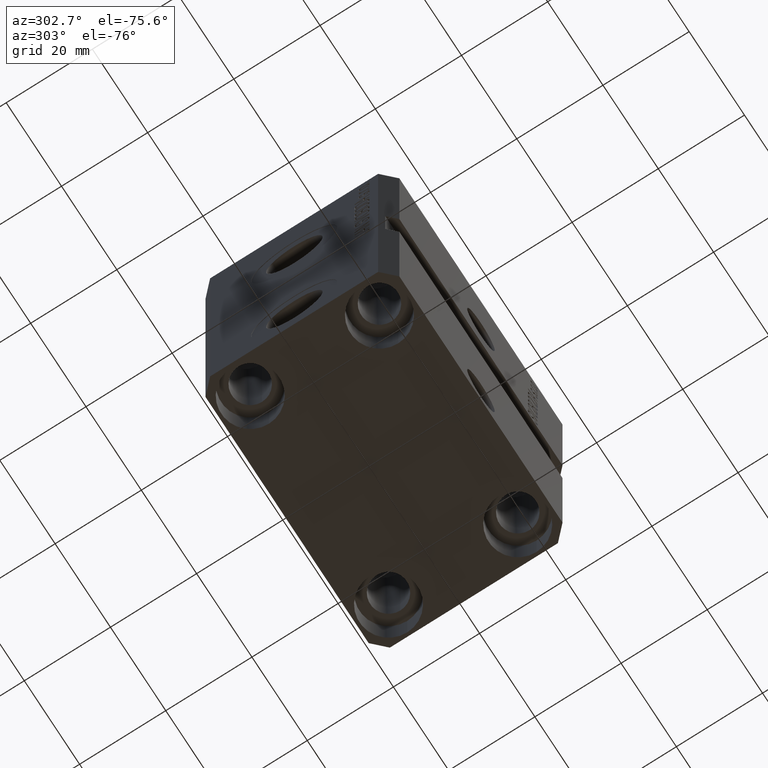
[diagram: clean part render]
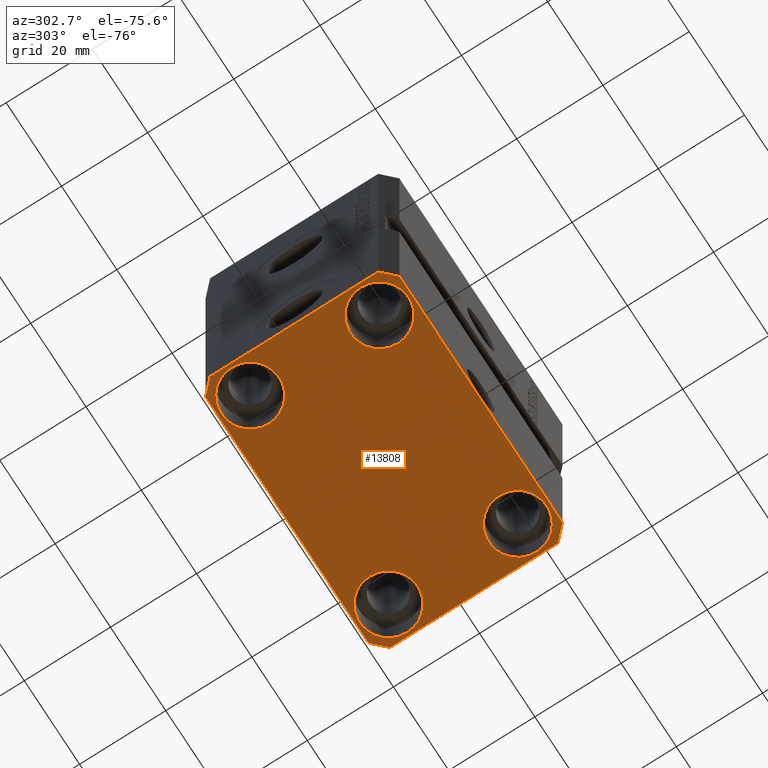
[diagram: same view with one face highlighted and labeled with its STEP entity id]
A machine part, auxiliary view. The second image highlights one B-rep face of the part: STEP entity #13808.
In plain terms, the highlighted planar face has unit normal (0, 0, 1).
Its self-contained STEP definition (entity closure, byte-faithful):
#385 = CARTESIAN_POINT ( 'NONE',  ( 24.99999999999999645, 15.00000000000000888, -77.00000000000000000 ) ) ;
#573 = AXIS2_PLACEMENT_3D ( 'NONE', #27769, #10561, #41965 ) ;
#877 = EDGE_CURVE ( 'NONE', #24814, #42746, #40366, .T. ) ;
#931 = EDGE_CURVE ( 'NONE', #3544, #34611, #20153, .T. ) ;
#1219 = AXIS2_PLACEMENT_3D ( 'NONE', #12422, #26602, #40784 ) ;
#1725 = DIRECTION ( 'NONE',  ( 0.7071067811865474617, -0.7071067811865474617, 0.000000000000000000 ) ) ;
#1830 = FACE_BOUND ( 'NONE', #39413, .T. ) ;
#2532 = VERTEX_POINT ( 'NONE', #19359 ) ;
#2724 = CARTESIAN_POINT ( 'NONE',  ( -32.49999999999650413, 19.49999999999949907, -77.00000000000000000 ) ) ;
#2886 = CARTESIAN_POINT ( 'NONE',  ( 32.49999999999651124, -19.49999999999949196, -77.00000000000000000 ) ) ;
#3140 = DIRECTION ( 'NONE',  ( 1.000000000000000000, 0.000000000000000000, 0.000000000000000000 ) ) ;
#3371 = PLANE ( 'NONE',  #573 ) ;
#3544 = VERTEX_POINT ( 'NONE', #45976 ) ;
#3685 = CARTESIAN_POINT ( 'NONE',  ( -29.49999999999650413, 22.49999999999949907, -77.00000000000000000 ) ) ;
#3698 = CARTESIAN_POINT ( 'NONE',  ( 18.25000000002253842, -15.00000000000000000, -77.00000000000000000 ) ) ;
#3925 = LINE ( 'NONE', #42525, #20994 ) ;
#4488 = VERTEX_POINT ( 'NONE', #6701 ) ;
#4956 = VERTEX_POINT ( 'NONE', #4984 ) ;
#4984 = CARTESIAN_POINT ( 'NONE',  ( 32.49999999999651124, -19.49999999999949196, -77.00000000000000000 ) ) ;
#5346 = CARTESIAN_POINT ( 'NONE',  ( -25.00000000000000355, -15.00000000000000000, -77.00000000000000000 ) ) ;
#5726 = CARTESIAN_POINT ( 'NONE',  ( -31.75000000002253842, 15.00000000000000000, -77.00000000000000000 ) ) ;
#5760 = ORIENTED_EDGE ( 'NONE', *, *, #28922, .F. ) ;
#6701 = CARTESIAN_POINT ( 'NONE',  ( 31.74999999997746869, -15.00000000000000000, -77.00000000000000000 ) ) ;
#6737 = ORIENTED_EDGE ( 'NONE', *, *, #25140, .F. ) ;
#6906 = DIRECTION ( 'NONE',  ( 1.000000000000000000, 0.000000000000000000, 0.000000000000000000 ) ) ;
#7117 = VERTEX_POINT ( 'NONE', #43460 ) ;
#7175 = DIRECTION ( 'NONE',  ( 1.000000000000000000, 0.000000000000000000, 0.000000000000000000 ) ) ;
#8166 = CARTESIAN_POINT ( 'NONE',  ( 25.00000000000000355, -15.00000000000000000, -77.00000000000000000 ) ) ;
#10081 = DIRECTION ( 'NONE',  ( 0.7071067811865483499, 0.7071067811865466846, 0.000000000000000000 ) ) ;
#10340 = EDGE_CURVE ( 'NONE', #13466, #22307, #10900, .T. ) ;
#10537 = LINE ( 'NONE', #17507, #21136 ) ;
#10561 = DIRECTION ( 'NONE',  ( 0.000000000000000000, 0.000000000000000000, 1.000000000000000000 ) ) ;
#10900 = CIRCLE ( 'NONE', #36119, 6.750000000041541881 ) ;
#11571 = DIRECTION ( 'NONE',  ( -0.000000000000000000, -0.000000000000000000, 1.000000000000000000 ) ) ;
#11980 = EDGE_LOOP ( 'NONE', ( #12995, #42139, #33696, #5760, #6737, #45534, #27306, #35012 ) ) ;
#12422 = CARTESIAN_POINT ( 'NONE',  ( 25.00000000000000355, -15.00000000000000000, -77.00000000000000000 ) ) ;
#12430 = EDGE_CURVE ( 'NONE', #4488, #24332, #23554, .T. ) ;
#12995 = ORIENTED_EDGE ( 'NONE', *, *, #13006, .F. ) ;
#13006 = EDGE_CURVE ( 'NONE', #25984, #25987, #23865, .T. ) ;
#13408 = DIRECTION ( 'NONE',  ( -1.000000000000000000, -2.352167425053553784E-16, 0.000000000000000000 ) ) ;
#13466 = VERTEX_POINT ( 'NONE', #25642 ) ;
#13553 = LINE ( 'NONE', #2886, #35110 ) ;
#13565 = ORIENTED_EDGE ( 'NONE', *, *, #10340, .T. ) ;
#13608 = ORIENTED_EDGE ( 'NONE', *, *, #31681, .T. ) ;
#13808 = ADVANCED_FACE ( 'NONE', ( #20344, #1830, #31716, #45922, #21028 ), #3371, .F. ) ;
#14669 = DIRECTION ( 'NONE',  ( 1.000000000000000000, 0.000000000000000000, 0.000000000000000000 ) ) ;
#15582 = AXIS2_PLACEMENT_3D ( 'NONE', #34987, #27771, #3140 ) ;
#15742 = VERTEX_POINT ( 'NONE', #19437 ) ;
#15761 = DIRECTION ( 'NONE',  ( 1.000000000000000000, 0.000000000000000000, 0.000000000000000000 ) ) ;
#16158 = AXIS2_PLACEMENT_3D ( 'NONE', #385, #28961, #6906 ) ;
#16960 = CARTESIAN_POINT ( 'NONE',  ( -29.49999999999650413, 22.49999999999949907, -77.00000000000000000 ) ) ;
#17507 = CARTESIAN_POINT ( 'NONE',  ( 29.49999999999650413, -22.49999999999949196, -77.00000000000000000 ) ) ;
#18080 = DIRECTION ( 'NONE',  ( 1.000000000000000000, 1.176083712526788232E-16, 0.000000000000000000 ) ) ;
#18142 = EDGE_CURVE ( 'NONE', #37987, #32836, #44386, .T. ) ;
#19261 = DIRECTION ( 'NONE',  ( -0.000000000000000000, -0.000000000000000000, 1.000000000000000000 ) ) ;
#19359 = CARTESIAN_POINT ( 'NONE',  ( -29.49999999999650413, -22.49999999999949907, -77.00000000000000000 ) ) ;
#19437 = CARTESIAN_POINT ( 'NONE',  ( 32.49999999999702993, 19.49999999999945999, -77.00000000000000000 ) ) ;
#19777 = EDGE_CURVE ( 'NONE', #42746, #24814, #44538, .T. ) ;
#20153 = LINE ( 'NONE', #2724, #23949 ) ;
#20197 = DIRECTION ( 'NONE',  ( 1.000000000000000000, 0.000000000000000000, 0.000000000000000000 ) ) ;
#20344 = FACE_BOUND ( 'NONE', #38104, .T. ) ;
#20723 = ORIENTED_EDGE ( 'NONE', *, *, #36889, .T. ) ;
#20994 = VECTOR ( 'NONE', #18080, 1000.000000000000000 ) ;
#21028 = FACE_OUTER_BOUND ( 'NONE', #11980, .T. ) ;
#21136 = VECTOR ( 'NONE', #10081, 1000.000000000000000 ) ;
#21775 = DIRECTION ( 'NONE',  ( -0.7071067811865474617, -0.7071067811865474617, 0.000000000000000000 ) ) ;
#22307 = VERTEX_POINT ( 'NONE', #35229 ) ;
#22788 = CARTESIAN_POINT ( 'NONE',  ( -32.49999999999650413, -19.49999999999949907, -77.00000000000000000 ) ) ;
#23376 = EDGE_CURVE ( 'NONE', #34611, #2532, #40314, .T. ) ;
#23554 = CIRCLE ( 'NONE', #42137, 6.749999999977465137 ) ;
#23865 = LINE ( 'NONE', #35497, #28779 ) ;
#23949 = VECTOR ( 'NONE', #45036, 1000.000000000000000 ) ;
#24172 = AXIS2_PLACEMENT_3D ( 'NONE', #40427, #26018, #36493 ) ;
#24229 = CIRCLE ( 'NONE', #1219, 6.749999999977465137 ) ;
#24250 = EDGE_LOOP ( 'NONE', ( #28723, #44421 ) ) ;
#24332 = VERTEX_POINT ( 'NONE', #3698 ) ;
#24545 = EDGE_CURVE ( 'NONE', #4956, #15742, #13553, .T. ) ;
#24672 = VECTOR ( 'NONE', #1725, 1000.000000000000114 ) ;
#24814 = VERTEX_POINT ( 'NONE', #42122 ) ;
#25140 = EDGE_CURVE ( 'NONE', #2532, #7117, #3925, .T. ) ;
#25642 = CARTESIAN_POINT ( 'NONE',  ( -31.75000000004154899, -15.00000000000000000, -77.00000000000000000 ) ) ;
#25984 = VERTEX_POINT ( 'NONE', #44642 ) ;
#25987 = VERTEX_POINT ( 'NONE', #16960 ) ;
#26018 = DIRECTION ( 'NONE',  ( -0.000000000000000000, -0.000000000000000000, 1.000000000000000000 ) ) ;
#26259 = AXIS2_PLACEMENT_3D ( 'NONE', #28784, #11571, #7175 ) ;
#26602 = DIRECTION ( 'NONE',  ( -0.000000000000000000, -0.000000000000000000, 1.000000000000000000 ) ) ;
#26915 = CARTESIAN_POINT ( 'NONE',  ( -25.00000000000000355, -15.00000000000000000, -77.00000000000000000 ) ) ;
#27306 = ORIENTED_EDGE ( 'NONE', *, *, #931, .F. ) ;
#27637 = ORIENTED_EDGE ( 'NONE', *, *, #18142, .T. ) ;
#27769 = CARTESIAN_POINT ( 'NONE',  ( 0.000000000000000000, 0.000000000000000000, -77.00000000000000000 ) ) ;
#27771 = DIRECTION ( 'NONE',  ( -0.000000000000000000, -0.000000000000000000, 1.000000000000000000 ) ) ;
#27998 = VECTOR ( 'NONE', #21775, 1000.000000000000114 ) ;
#28062 = AXIS2_PLACEMENT_3D ( 'NONE', #26915, #19261, #15761 ) ;
#28268 = EDGE_LOOP ( 'NONE', ( #27637, #13608 ) ) ;
#28303 = LINE ( 'NONE', #3685, #27998 ) ;
#28723 = ORIENTED_EDGE ( 'NONE', *, *, #19777, .T. ) ;
#28779 = VECTOR ( 'NONE', #13408, 1000.000000000000000 ) ;
#28784 = CARTESIAN_POINT ( 'NONE',  ( -25.00000000000000355, 15.00000000000000000, -77.00000000000000000 ) ) ;
#28842 = CARTESIAN_POINT ( 'NONE',  ( 32.49999999999702993, 19.49999999999945999, -77.00000000000000000 ) ) ;
#28922 = EDGE_CURVE ( 'NONE', #7117, #4956, #10537, .T. ) ;
#28961 = DIRECTION ( 'NONE',  ( -0.000000000000000000, -0.000000000000000000, 1.000000000000000000 ) ) ;
#29982 = CARTESIAN_POINT ( 'NONE',  ( 31.74999999995845101, 15.00000000000000888, -77.00000000000000000 ) ) ;
#31681 = EDGE_CURVE ( 'NONE', #32836, #37987, #39776, .T. ) ;
#31716 = FACE_BOUND ( 'NONE', #28268, .T. ) ;
#31832 = ORIENTED_EDGE ( 'NONE', *, *, #12430, .T. ) ;
#32692 = EDGE_CURVE ( 'NONE', #15742, #25984, #39305, .T. ) ;
#32836 = VERTEX_POINT ( 'NONE', #29982 ) ;
#33564 = CARTESIAN_POINT ( 'NONE',  ( -32.49999999999650413, -19.49999999999949907, -77.00000000000000000 ) ) ;
#33696 = ORIENTED_EDGE ( 'NONE', *, *, #24545, .F. ) ;
#33888 = ORIENTED_EDGE ( 'NONE', *, *, #41566, .T. ) ;
#34041 = DIRECTION ( 'NONE',  ( 1.334402673828349134E-14, 1.000000000000000000, 0.000000000000000000 ) ) ;
#34611 = VERTEX_POINT ( 'NONE', #22788 ) ;
#34987 = CARTESIAN_POINT ( 'NONE',  ( -25.00000000000000355, 15.00000000000000000, -77.00000000000000000 ) ) ;
#35012 = ORIENTED_EDGE ( 'NONE', *, *, #35375, .F. ) ;
#35110 = VECTOR ( 'NONE', #34041, 1000.000000000000000 ) ;
#35229 = CARTESIAN_POINT ( 'NONE',  ( -18.24999999995845812, -15.00000000000000000, -77.00000000000000000 ) ) ;
#35375 = EDGE_CURVE ( 'NONE', #25987, #3544, #28303, .T. ) ;
#35497 = CARTESIAN_POINT ( 'NONE',  ( 29.49999999999707967, 22.49999999999951328, -77.00000000000000000 ) ) ;
#36119 = AXIS2_PLACEMENT_3D ( 'NONE', #5346, #41366, #20197 ) ;
#36493 = DIRECTION ( 'NONE',  ( 1.000000000000000000, 0.000000000000000000, 0.000000000000000000 ) ) ;
#36889 = EDGE_CURVE ( 'NONE', #24332, #4488, #24229, .T. ) ;
#37590 = VECTOR ( 'NONE', #43033, 1000.000000000000000 ) ;
#37987 = VERTEX_POINT ( 'NONE', #39365 ) ;
#38104 = EDGE_LOOP ( 'NONE', ( #13565, #33888 ) ) ;
#39305 = LINE ( 'NONE', #28842, #37590 ) ;
#39365 = CARTESIAN_POINT ( 'NONE',  ( 18.25000000004154543, 15.00000000000000888, -77.00000000000000000 ) ) ;
#39413 = EDGE_LOOP ( 'NONE', ( #20723, #31832 ) ) ;
#39776 = CIRCLE ( 'NONE', #24172, 6.749999999958452790 ) ;
#40003 = DIRECTION ( 'NONE',  ( -0.000000000000000000, -0.000000000000000000, 1.000000000000000000 ) ) ;
#40314 = LINE ( 'NONE', #33564, #24672 ) ;
#40366 = CIRCLE ( 'NONE', #26259, 6.750000000022533087 ) ;
#40427 = CARTESIAN_POINT ( 'NONE',  ( 24.99999999999999645, 15.00000000000000888, -77.00000000000000000 ) ) ;
#40784 = DIRECTION ( 'NONE',  ( 1.000000000000000000, 0.000000000000000000, 0.000000000000000000 ) ) ;
#41366 = DIRECTION ( 'NONE',  ( -0.000000000000000000, -0.000000000000000000, 1.000000000000000000 ) ) ;
#41566 = EDGE_CURVE ( 'NONE', #22307, #13466, #44401, .T. ) ;
#41965 = DIRECTION ( 'NONE',  ( 1.000000000000000000, 0.000000000000000000, -0.000000000000000000 ) ) ;
#42122 = CARTESIAN_POINT ( 'NONE',  ( -18.24999999997747224, 15.00000000000000000, -77.00000000000000000 ) ) ;
#42137 = AXIS2_PLACEMENT_3D ( 'NONE', #8166, #40003, #14669 ) ;
#42139 = ORIENTED_EDGE ( 'NONE', *, *, #32692, .F. ) ;
#42525 = CARTESIAN_POINT ( 'NONE',  ( -29.49999999999650413, -22.49999999999949907, -77.00000000000000000 ) ) ;
#42746 = VERTEX_POINT ( 'NONE', #5726 ) ;
#43033 = DIRECTION ( 'NONE',  ( -0.7071067811865352493, 0.7071067811865597852, 0.000000000000000000 ) ) ;
#43460 = CARTESIAN_POINT ( 'NONE',  ( 29.49999999999650413, -22.49999999999949196, -77.00000000000000000 ) ) ;
#44386 = CIRCLE ( 'NONE', #16158, 6.749999999958452790 ) ;
#44401 = CIRCLE ( 'NONE', #28062, 6.750000000041541881 ) ;
#44421 = ORIENTED_EDGE ( 'NONE', *, *, #877, .T. ) ;
#44538 = CIRCLE ( 'NONE', #15582, 6.750000000022533087 ) ;
#44642 = CARTESIAN_POINT ( 'NONE',  ( 29.49999999999707967, 22.49999999999951328, -77.00000000000000000 ) ) ;
#45036 = DIRECTION ( 'NONE',  ( 0.000000000000000000, -1.000000000000000000, 0.000000000000000000 ) ) ;
#45534 = ORIENTED_EDGE ( 'NONE', *, *, #23376, .F. ) ;
#45922 = FACE_BOUND ( 'NONE', #24250, .T. ) ;
#45976 = CARTESIAN_POINT ( 'NONE',  ( -32.49999999999650413, 19.49999999999949907, -77.00000000000000000 ) ) ;